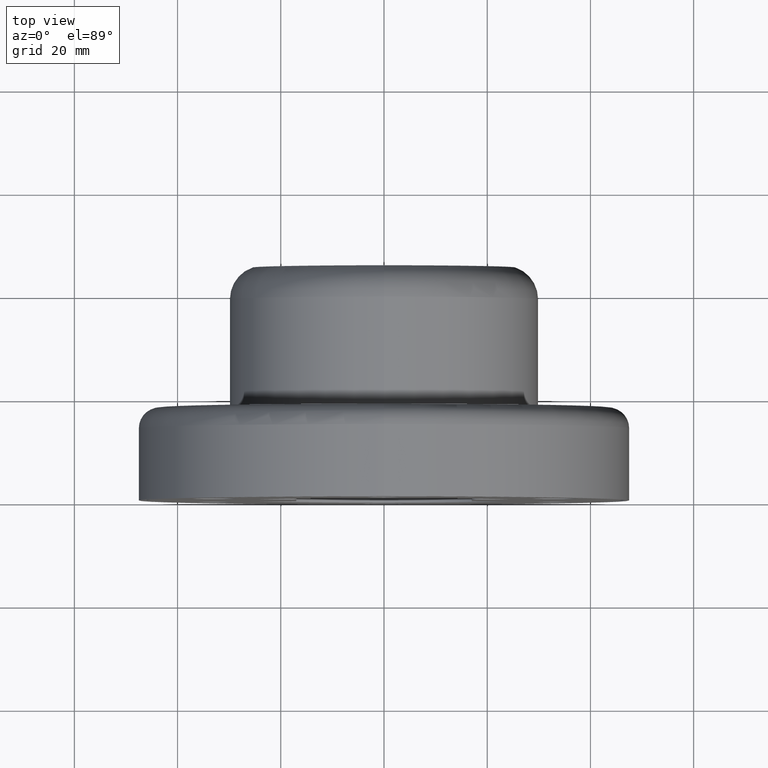
[diagram: clean part render]
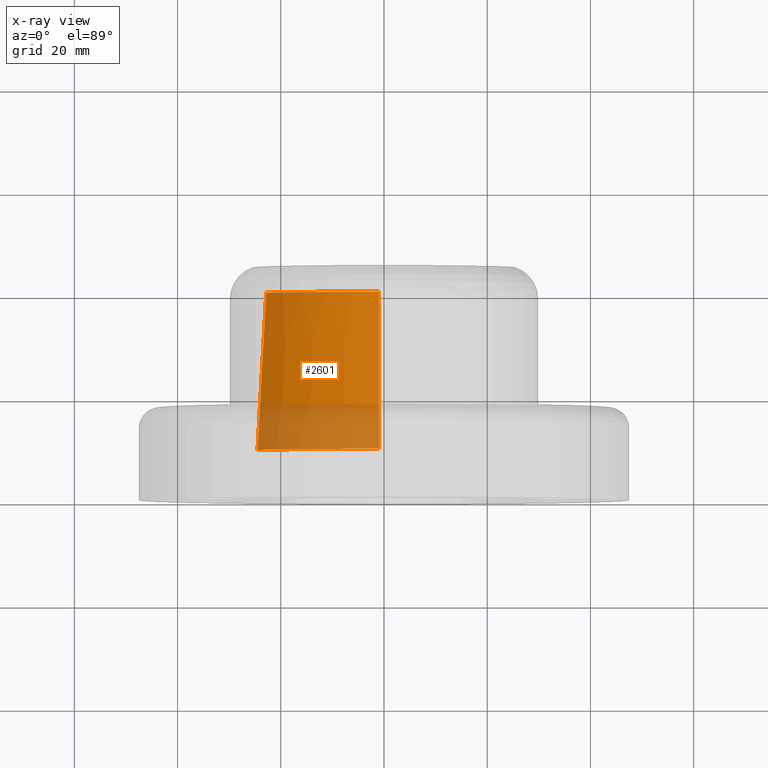
[diagram: x-ray — body ghosted, one internal face saturated and labeled with its STEP entity id]
A machine part, top view, then the same camera in x-ray: the body is ghosted and one INTERNAL B-rep face — a face not visible from any outside direction — is saturated and labeled: STEP entity #2601.
In plain terms, the highlighted conical surface has half-angle 3.658 deg.
Its self-contained STEP definition (entity closure, byte-faithful):
#22 = CARTESIAN_POINT ( 'NONE',  ( -0.9999999999979725100, 10.83856633738525100, 28.79706203047738100 ) ) ;
#165 = ORIENTED_EDGE ( 'NONE', *, *, #936, .F. ) ;
#244 = DIRECTION ( 'NONE',  ( 3.802133645976562900E-016, -1.000000000000000000, -0.0000000000000000000 ) ) ;
#412 = VERTEX_POINT ( 'NONE', #2438 ) ;
#434 = ORIENTED_EDGE ( 'NONE', *, *, #3387, .F. ) ;
#509 = CARTESIAN_POINT ( 'NONE',  ( -0.9999999999979783900, 25.35178248257086200, 27.86858980816106500 ) ) ;
#529 = CARTESIAN_POINT ( 'NONE',  ( -3.081487911019577400E-030, 40.00000000000001400, 0.0000000000000000000 ) ) ;
#534 = EDGE_CURVE ( 'NONE', #1482, #3360, #3363, .T. ) ;
#565 = CARTESIAN_POINT ( 'NONE',  ( -23.38661616437992700, 29.83333526090383700, 14.65696967632017900 ) ) ;
#605 = CARTESIAN_POINT ( 'NONE',  ( -24.51314654336713900, 9.499999999999991100, 15.30737229387874300 ) ) ;
#762 = DIRECTION ( 'NONE',  ( 1.000000000000000000, 3.601502026249428100E-016, 0.0000000000000000000 ) ) ;
#795 = CARTESIAN_POINT ( 'NONE',  ( -0.9999999999979754000, 17.46106037661578000, 28.37339886934207900 ) ) ;
#837 = CARTESIAN_POINT ( 'NONE',  ( -23.94989263741857100, 19.66666846393483300, 14.98217749965722900 ) ) ;
#936 = EDGE_CURVE ( 'NONE', #1498, #3360, #1497, .T. ) ;
#1113 = AXIS2_PLACEMENT_3D ( 'NONE', #2261, #1446, #1759 ) ;
#1386 = CARTESIAN_POINT ( 'NONE',  ( -22.82331183601426600, 40.00000000000000700, 14.33174577070258200 ) ) ;
#1446 = DIRECTION ( 'NONE',  ( 3.802133645976562900E-016, -1.000000000000000000, -0.0000000000000000000 ) ) ;
#1482 = VERTEX_POINT ( 'NONE', #2111 ) ;
#1497 = B_SPLINE_CURVE_WITH_KNOTS ( 'NONE', 3,
 ( #1670, #837, #565, #1386 ),
 .UNSPECIFIED., .F., .F.,
 ( 4, 4 ),
 ( 2.004088332025416500E-007, 0.03056255287802150900 ),
 .UNSPECIFIED. ) ;
#1498 = VERTEX_POINT ( 'NONE', #605 ) ;
#1567 = CARTESIAN_POINT ( 'NONE',  ( -0.9999999999979803900, 30.23452210033756100, 27.55621374362518600 ) ) ;
#1594 = DIRECTION ( 'NONE',  ( 3.802133645976562900E-016, -1.000000000000000000, -0.0000000000000000000 ) ) ;
#1603 = CARTESIAN_POINT ( 'NONE',  ( -0.9999999999979769500, 21.40642156997121900, 28.12099653297742200 ) ) ;
#1670 = CARTESIAN_POINT ( 'NONE',  ( -24.51314654336713900, 9.499999999999991100, 15.30737229387874300 ) ) ;
#1759 = DIRECTION ( 'NONE',  ( 1.000000000000000000, 3.601502026249428100E-016, 0.0000000000000000000 ) ) ;
#1857 = AXIS2_PLACEMENT_3D ( 'NONE', #2624, #1594, #762 ) ;
#2040 = CONICAL_SURFACE ( 'NONE', #1113, 28.89999999999998800, 0.06384752623988566900 ) ;
#2111 = CARTESIAN_POINT ( 'NONE',  ( -0.9999999999979842800, 40.00000000000001400, 26.93144073383383100 ) ) ;
#2190 = ORIENTED_EDGE ( 'NONE', *, *, #2710, .F. ) ;
#2261 = CARTESIAN_POINT ( 'NONE',  ( 1.159650762022851900E-014, 9.500000000000000000, 0.0000000000000000000 ) ) ;
#2330 = EDGE_LOOP ( 'NONE', ( #165, #2190, #434, #3175 ) ) ;
#2370 = DIRECTION ( 'NONE',  ( 1.000000000000000000, 2.574728721301383200E-016, 0.0000000000000000000 ) ) ;
#2419 = CARTESIAN_POINT ( 'NONE',  ( -22.82331183601426600, 40.00000000000000700, 14.33174577070258200 ) ) ;
#2438 = CARTESIAN_POINT ( 'NONE',  ( -0.9999999999979762900, 9.500000000000000000, 28.88269378018614100 ) ) ;
#2494 = B_SPLINE_CURVE_WITH_KNOTS ( 'NONE', 3,
 ( #3226, #2920, #1567, #509, #1603, #795, #2666, #2959, #22, #2645 ),
 .UNSPECIFIED., .F., .F.,
 ( 4, 3, 3, 4 ),
 ( 0.03213439566079570600, 0.04681256056049614600, 0.05867284036180661600, 0.06269674812974930500 ),
 .UNSPECIFIED. ) ;
#2601 = ADVANCED_FACE ( 'NONE', ( #2681 ), #2040, .T. ) ;
#2624 = CARTESIAN_POINT ( 'NONE',  ( 1.159650762022851900E-014, 9.500000000000000000, 0.0000000000000000000 ) ) ;
#2645 = CARTESIAN_POINT ( 'NONE',  ( -0.9999999999979762900, 9.500000000000000000, 28.88269378018614100 ) ) ;
#2666 = CARTESIAN_POINT ( 'NONE',  ( -0.9999999999979738400, 13.51569892422289100, 28.62579715652702500 ) ) ;
#2681 = FACE_OUTER_BOUND ( 'NONE', #2330, .T. ) ;
#2710 = EDGE_CURVE ( 'NONE', #412, #1498, #3357, .T. ) ;
#2920 = CARTESIAN_POINT ( 'NONE',  ( -0.9999999999979822800, 35.11726128831933400, 27.24383096104697100 ) ) ;
#2959 = CARTESIAN_POINT ( 'NONE',  ( -0.9999999999979734000, 12.17713264572275000, 28.71142982670279800 ) ) ;
#3052 = AXIS2_PLACEMENT_3D ( 'NONE', #529, #244, #2370 ) ;
#3175 = ORIENTED_EDGE ( 'NONE', *, *, #534, .T. ) ;
#3226 = CARTESIAN_POINT ( 'NONE',  ( -0.9999999999979842800, 40.00000000000001400, 26.93144073383383100 ) ) ;
#3357 = CIRCLE ( 'NONE', #1857, 28.89999999999998800 ) ;
#3360 = VERTEX_POINT ( 'NONE', #2419 ) ;
#3363 = CIRCLE ( 'NONE', #3052, 26.95000000000000300 ) ;
#3387 = EDGE_CURVE ( 'NONE', #1482, #412, #2494, .T. ) ;